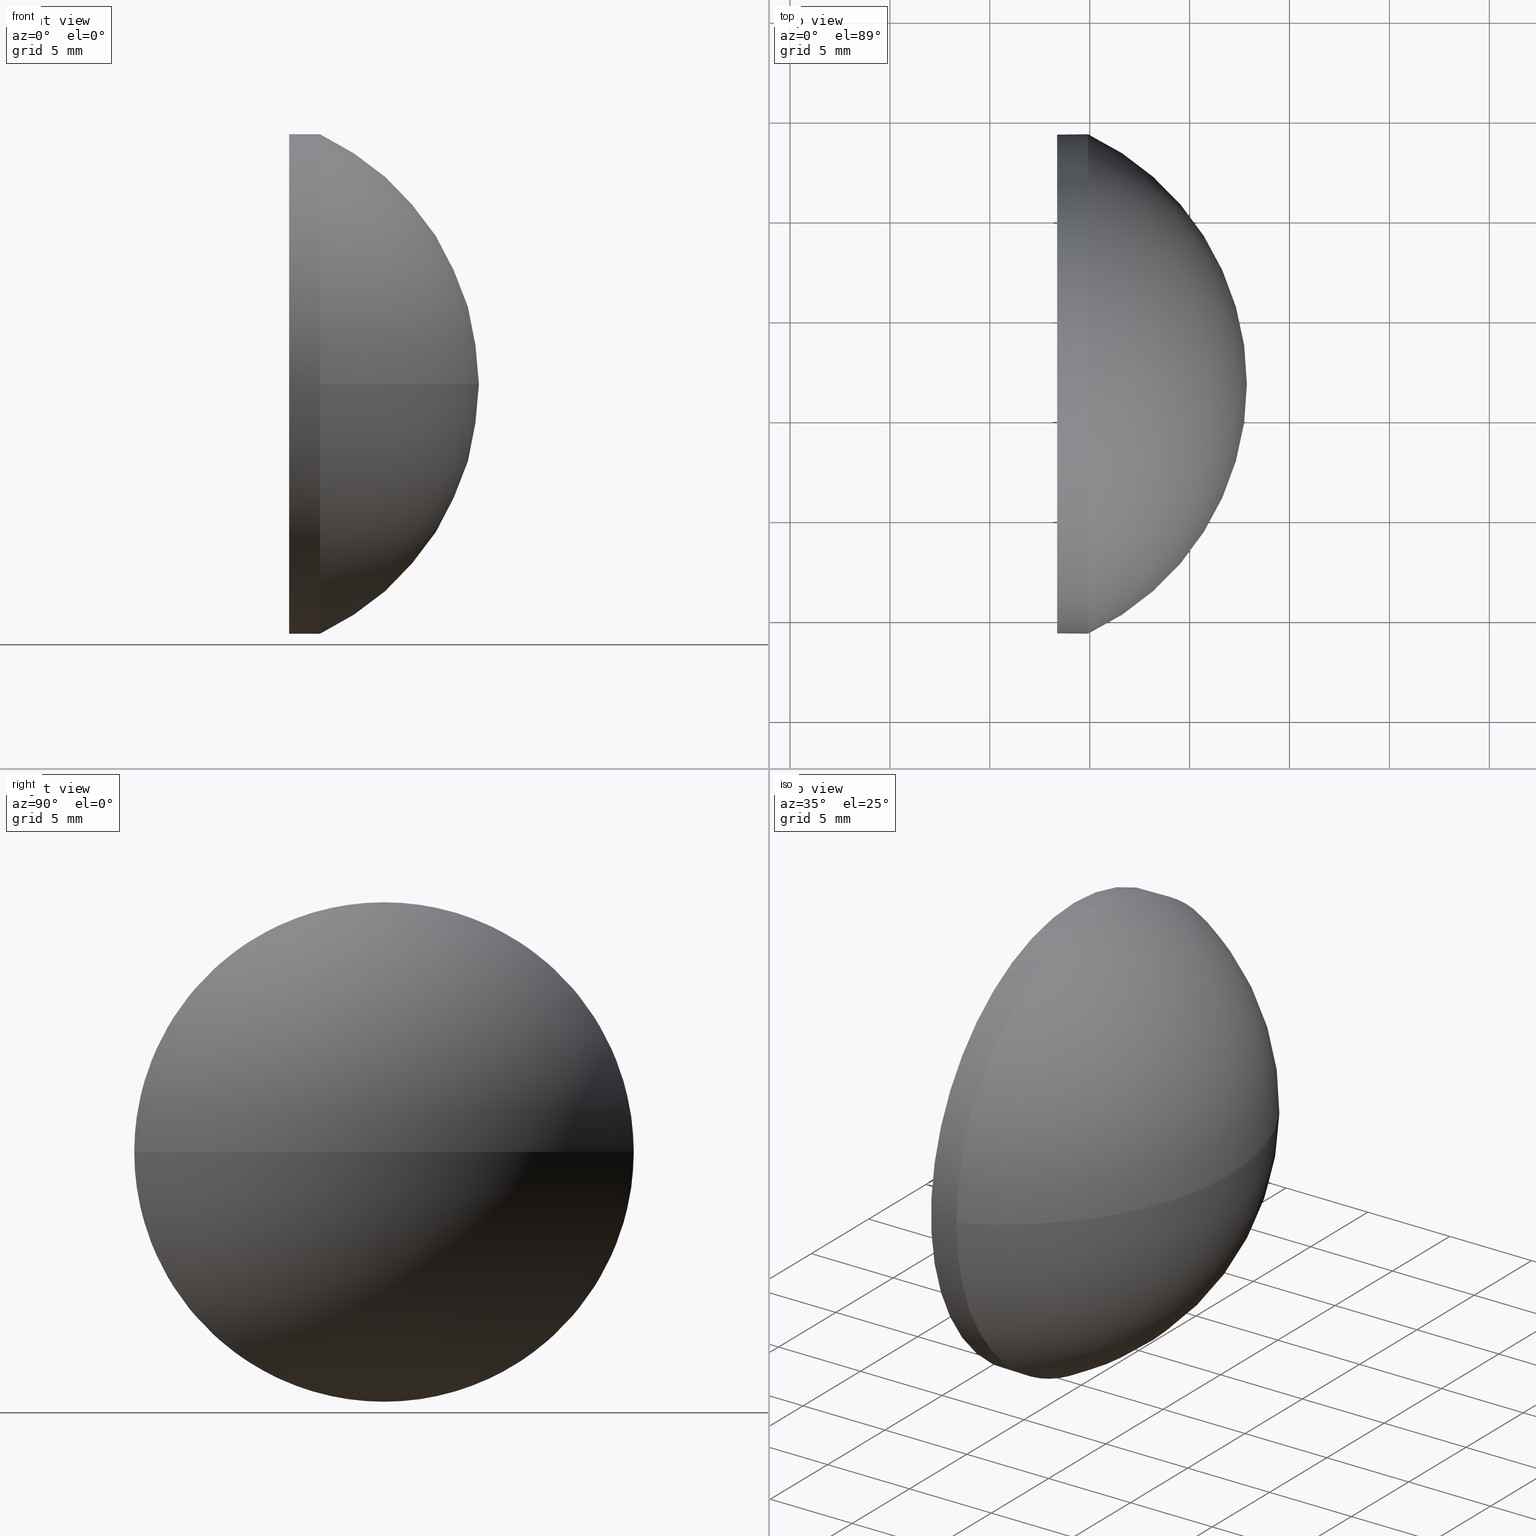
[diagram: canonical four-view strip — front | top / right | iso, engineering-drawing reading convention]
A machine part, canonical four-view strip (front | top / right | iso — engineering-drawing reading convention). The complete STEP part file that produces these views, byte-faithful:
ISO-10303-21;
HEADER;
FILE_DESCRIPTION (( 'STEP AP214' ),
    '1' );
FILE_NAME ('100037.STEP',
    '2019-04-25T08:30:51',
    ( '' ),
    ( '' ),
    'SwSTEP 2.0',
    'SolidWorks 2016',
    '' );
FILE_SCHEMA (( 'AUTOMOTIVE_DESIGN' ));
ENDSEC;

DATA;
#1 = UNCERTAINTY_MEASURE_WITH_UNIT (LENGTH_MEASURE( 1.000000000000000100E-005 ), #69, 'distance_accuracy_value', 'NONE');
#2 = FACE_OUTER_BOUND ( 'NONE', #48, .T. ) ;
#3 = ORIENTED_EDGE ( 'NONE', *, *, #159, .F. ) ;
#4 = ORIENTED_EDGE ( 'NONE', *, *, #67, .T. ) ;
#5 = STYLED_ITEM ( 'NONE', ( #38 ), #182 ) ;
#6 = DIRECTION ( 'NONE',  ( 1.000000000000000000, 0.0000000000000000000, 0.0000000000000000000 ) ) ;
#7 = DIRECTION ( 'NONE',  ( 0.0000000000000000000, 0.0000000000000000000, -1.000000000000000000 ) ) ;
#8 = AXIS2_PLACEMENT_3D ( 'NONE', #114, #42, #82 ) ;
#9 = PRODUCT_DEFINITION_SHAPE ( 'NONE', 'NONE',  #29 ) ;
#10 = AXIS2_PLACEMENT_3D ( 'NONE', #104, #73, #119 ) ;
#11 = ORIENTED_EDGE ( 'NONE', *, *, #67, .F. ) ;
#12 = EDGE_LOOP ( 'NONE', ( #11, #86, #72, #113 ) ) ;
#13 = MECHANICAL_DESIGN_GEOMETRIC_PRESENTATION_REPRESENTATION (  '', ( #5 ), #132 ) ;
#14 = LINE ( 'NONE', #148, #174 ) ;
#15 = DIRECTION ( 'NONE',  ( -1.000000000000000000, -0.0000000000000000000, -0.0000000000000000000 ) ) ;
#16 = FACE_OUTER_BOUND ( 'NONE', #77, .T. ) ;
#17 = CARTESIAN_POINT ( 'NONE',  ( 489.9168740075318200, 159.2156972972453800, 0.0000000000000000000 ) ) ;
#18 = CIRCLE ( 'NONE', #8, 13.80204402515722300 ) ;
#19 = ORIENTED_EDGE ( 'NONE', *, *, #22, .F. ) ;
#20 = ADVANCED_FACE ( 'NONE', ( #106 ), #110, .T. ) ;
#21 = ORIENTED_EDGE ( 'NONE', *, *, #173, .F. ) ;
#22 = EDGE_CURVE ( 'NONE', #49, #121, #58, .T. ) ;
#23 = EDGE_LOOP ( 'NONE', ( #55, #131, #3, #21, #30 ) ) ;
#24 = CARTESIAN_POINT ( 'NONE',  ( 488.3668740075318100, 171.7156972972453600, 0.0000000000000000000 ) ) ;
#25 = CARTESIAN_POINT ( 'NONE',  ( 486.8548427656419300, 171.7156972972453600, 0.0000000000000000000 ) ) ;
#26 = DIRECTION ( 'NONE',  ( 0.0000000000000000000, 0.0000000000000000000, 1.000000000000000000 ) ) ;
#27 = DIRECTION ( 'NONE',  ( -1.000000000000000000, -0.0000000000000000000, -0.0000000000000000000 ) ) ;
#28 = CARTESIAN_POINT ( 'NONE',  ( 489.9168740075318200, 171.7156972972453600, 0.0000000000000000000 ) ) ;
#29 = PRODUCT_DEFINITION ( 'δ֪', '', #45, #95 ) ;
#30 = ORIENTED_EDGE ( 'NONE', *, *, #43, .T. ) ;
#31 = CARTESIAN_POINT ( 'NONE',  ( 489.9168740075318200, 171.7156972972453600, 0.0000000000000000000 ) ) ;
#32 = EDGE_CURVE ( 'NONE', #167, #175, #44, .T. ) ;
#33 = ORIENTED_EDGE ( 'NONE', *, *, #173, .T. ) ;
#34 = MANIFOLD_SOLID_BREP ( '��ת1', #76 ) ;
#35 = ADVANCED_FACE ( 'NONE', ( #16 ), #172, .T. ) ;
#36 = ORIENTED_EDGE ( 'NONE', *, *, #32, .T. ) ;
#37 = CARTESIAN_POINT ( 'NONE',  ( 488.3668740075318100, 171.7156972972453600, 0.0000000000000000000 ) ) ;
#38 = PRESENTATION_STYLE_ASSIGNMENT (( #123 ) ) ;
#39 = FILL_AREA_STYLE_COLOUR ( '', #61 ) ;
#40 = CARTESIAN_POINT ( 'NONE',  ( 489.9168740075318200, 171.7156972972453600, 0.0000000000000000000 ) ) ;
#41 = ORIENTED_EDGE ( 'NONE', *, *, #32, .F. ) ;
#42 = DIRECTION ( 'NONE',  ( 0.0000000000000000000, 0.0000000000000000000, -1.000000000000000000 ) ) ;
#43 = EDGE_CURVE ( 'NONE', #100, #128, #165, .T. ) ;
#44 = CIRCLE ( 'NONE', #88, 12.49999999999998400 ) ;
#45 = PRODUCT_DEFINITION_FORMATION_WITH_SPECIFIED_SOURCE ( '�κ�', '', #74, .NOT_KNOWN. ) ;
#46 = SURFACE_STYLE_FILL_AREA ( #166 ) ;
#47 = DIRECTION ( 'NONE',  ( 0.0000000000000000000, -1.224646799147353200E-016, 1.000000000000000000 ) ) ;
#48 = EDGE_LOOP ( 'NONE', ( #144, #36, #158, #33, #19 ) ) ;
#49 = VERTEX_POINT ( 'NONE', #184 ) ;
#50 = PLANE ( 'NONE',  #52 ) ;
#51 = CARTESIAN_POINT ( 'NONE',  ( 489.9168740075318200, 171.7156972972453600, -12.49999999999998400 ) ) ;
#52 = AXIS2_PLACEMENT_3D ( 'NONE', #139, #163, #7 ) ;
#53 = CYLINDRICAL_SURFACE ( 'NONE', #10, 12.49999999999998400 ) ;
#54 = DIRECTION ( 'NONE',  ( 0.0000000000000000000, 0.0000000000000000000, 1.000000000000000000 ) ) ;
#55 = ORIENTED_EDGE ( 'NONE', *, *, #59, .T. ) ;
#56 = EDGE_LOOP ( 'NONE', ( #87, #120 ) ) ;
#57 = CARTESIAN_POINT ( 'NONE',  ( 484.0648299823745900, 171.7156972972453800, 0.0000000000000000000 ) ) ;
#58 = CIRCLE ( 'NONE', #179, 12.49999999999998400 ) ;
#59 = EDGE_CURVE ( 'NONE', #128, #167, #93, .T. ) ;
#60 = AXIS2_PLACEMENT_3D ( 'NONE', #31, #15, #186 ) ;
#61 = COLOUR_RGB ( '',1.000000000000000000, 1.000000000000000000, 1.000000000000000000 ) ;
#62 = AXIS2_PLACEMENT_3D ( 'NONE', #178, #135, #6 ) ;
#63 = ADVANCED_FACE ( 'NONE', ( #80 ), #105, .T. ) ;
#64 = UNCERTAINTY_MEASURE_WITH_UNIT (LENGTH_MEASURE( 1.000000000000000100E-005 ), #125, 'distance_accuracy_value', 'NONE');
#65 = DIRECTION ( 'NONE',  ( -1.000000000000000000, -0.0000000000000000000, -0.0000000000000000000 ) ) ;
#66 = DIRECTION ( 'NONE',  ( 0.0000000000000000000, 0.0000000000000000000, 1.000000000000000000 ) ) ;
#67 = EDGE_CURVE ( 'NONE', #151, #175, #18, .T. ) ;
#68 =( NAMED_UNIT ( * ) SI_UNIT ( $, .STERADIAN. ) SOLID_ANGLE_UNIT ( ) );
#69 =( LENGTH_UNIT ( ) NAMED_UNIT ( * ) SI_UNIT ( .MILLI., .METRE. ) );
#70 = SURFACE_SIDE_STYLE ('',( #46 ) ) ;
#71 = DIRECTION ( 'NONE',  ( -1.000000000000000000, -0.0000000000000000000, -0.0000000000000000000 ) ) ;
#72 = ORIENTED_EDGE ( 'NONE', *, *, #43, .F. ) ;
#73 = DIRECTION ( 'NONE',  ( -1.000000000000000000, -0.0000000000000000000, -0.0000000000000000000 ) ) ;
#74 = PRODUCT ( '100037', '100037', '', ( #99 ) ) ;
#75 = CARTESIAN_POINT ( 'NONE',  ( 489.9168740075318200, 184.2156972972453600, 1.530808498934187400E-015 ) ) ;
#76 = CLOSED_SHELL ( 'NONE', ( #20, #63, #35, #91, #160 ) ) ;
#77 = EDGE_LOOP ( 'NONE', ( #117, #4, #41, #137 ) ) ;
#78 = DIRECTION ( 'NONE',  ( -1.000000000000000000, -0.0000000000000000000, -0.0000000000000000000 ) ) ;
#79 = AXIS2_PLACEMENT_3D ( 'NONE', #25, #122, #108 ) ;
#80 = FACE_OUTER_BOUND ( 'NONE', #12, .T. ) ;
#81 = CARTESIAN_POINT ( 'NONE',  ( 489.9168740075318200, 171.7156972972453600, 0.0000000000000000000 ) ) ;
#82 = DIRECTION ( 'NONE',  ( -1.000000000000000000, 0.0000000000000000000, 0.0000000000000000000 ) ) ;
#83 = SHAPE_DEFINITION_REPRESENTATION ( #9, #182 ) ;
#84 = APPLICATION_PROTOCOL_DEFINITION ( 'draft international standard', 'automotive_design', 1998, #171 ) ;
#85 = EDGE_CURVE ( 'NONE', #151, #128, #90, .T. ) ;
#86 = ORIENTED_EDGE ( 'NONE', *, *, #85, .T. ) ;
#87 = ORIENTED_EDGE ( 'NONE', *, *, #159, .T. ) ;
#88 = AXIS2_PLACEMENT_3D ( 'NONE', #40, #27, #141 ) ;
#89 = DIRECTION ( 'NONE',  ( -1.000000000000000000, -0.0000000000000000000, -0.0000000000000000000 ) ) ;
#90 = CIRCLE ( 'NONE', #145, 13.80204402515719600 ) ;
#91 = ADVANCED_FACE ( 'NONE', ( #2 ), #53, .T. ) ;
#92 = EDGE_CURVE ( 'NONE', #167, #49, #130, .T. ) ;
#93 = CIRCLE ( 'NONE', #94, 12.49999999999998400 ) ;
#94 = AXIS2_PLACEMENT_3D ( 'NONE', #28, #143, #170 ) ;
#95 = PRODUCT_DEFINITION_CONTEXT ( 'detailed design', #176, 'design' ) ;
#96 = DIRECTION ( 'NONE',  ( 0.0000000000000000000, -1.000000000000000000, 0.0000000000000000000 ) ) ;
#97 = AXIS2_PLACEMENT_3D ( 'NONE', #81, #71, #26 ) ;
#98 = CIRCLE ( 'NONE', #60, 12.49999999999998400 ) ;
#99 = PRODUCT_CONTEXT ( 'NONE', #171, 'mechanical' ) ;
#100 = VERTEX_POINT ( 'NONE', #103 ) ;
#101 = PRODUCT_RELATED_PRODUCT_CATEGORY ( 'part', '', ( #74 ) ) ;
#102 = MECHANICAL_DESIGN_GEOMETRIC_PRESENTATION_REPRESENTATION (  '', ( #185 ), #124 ) ;
#103 = CARTESIAN_POINT ( 'NONE',  ( 489.9168740075318200, 171.7156972972453600, 12.49999999999998400 ) ) ;
#104 = CARTESIAN_POINT ( 'NONE',  ( 486.8548427656419300, 171.7156972972453600, 0.0000000000000000000 ) ) ;
#105 = SPHERICAL_SURFACE ( 'NONE', #115, 13.80204402515720300 ) ;
#106 = FACE_OUTER_BOUND ( 'NONE', #23, .T. ) ;
#107 = PRESENTATION_LAYER_ASSIGNMENT (  '', '', ( #185 ) ) ;
#108 = DIRECTION ( 'NONE',  ( 0.0000000000000000000, 0.0000000000000000000, 1.000000000000000000 ) ) ;
#109 = AXIS2_PLACEMENT_3D ( 'NONE', #57, #54, #96 ) ;
#110 = CYLINDRICAL_SURFACE ( 'NONE', #79, 12.49999999999998400 ) ;
#111 = DIRECTION ( 'NONE',  ( 0.0000000000000000000, 0.0000000000000000000, 1.000000000000000000 ) ) ;
#112 = DIRECTION ( 'NONE',  ( 0.0000000000000000000, -1.000000000000000000, 0.0000000000000000000 ) ) ;
#113 = ORIENTED_EDGE ( 'NONE', *, *, #150, .F. ) ;
#114 = CARTESIAN_POINT ( 'NONE',  ( 484.0648299823745900, 171.7156972972453800, 0.0000000000000000000 ) ) ;
#115 = AXIS2_PLACEMENT_3D ( 'NONE', #157, #126, #112 ) ;
#116 = FACE_OUTER_BOUND ( 'NONE', #56, .T. ) ;
#117 = ORIENTED_EDGE ( 'NONE', *, *, #85, .F. ) ;
#118 = CARTESIAN_POINT ( 'NONE',  ( 484.0648299823745900, 171.7156972972453800, 0.0000000000000000000 ) ) ;
#119 = DIRECTION ( 'NONE',  ( 0.0000000000000000000, 0.0000000000000000000, 1.000000000000000000 ) ) ;
#120 = ORIENTED_EDGE ( 'NONE', *, *, #22, .T. ) ;
#121 = VERTEX_POINT ( 'NONE', #162 ) ;
#122 = DIRECTION ( 'NONE',  ( -1.000000000000000000, -0.0000000000000000000, -0.0000000000000000000 ) ) ;
#123 = SURFACE_STYLE_USAGE ( .BOTH. , #140 ) ;
#124 =( GEOMETRIC_REPRESENTATION_CONTEXT ( 3 ) GLOBAL_UNCERTAINTY_ASSIGNED_CONTEXT ( ( #64 ) ) GLOBAL_UNIT_ASSIGNED_CONTEXT ( ( #125, #127, #68 ) ) REPRESENTATION_CONTEXT ( 'NONE', 'WORKASPACE' ) );
#125 =( LENGTH_UNIT ( ) NAMED_UNIT ( * ) SI_UNIT ( .MILLI., .METRE. ) );
#126 = DIRECTION ( 'NONE',  ( 0.0000000000000000000, 0.0000000000000000000, 1.000000000000000000 ) ) ;
#127 =( NAMED_UNIT ( * ) PLANE_ANGLE_UNIT ( ) SI_UNIT ( $, .RADIAN. ) );
#128 = VERTEX_POINT ( 'NONE', #75 ) ;
#129 = CARTESIAN_POINT ( 'NONE',  ( 497.8668740075318100, 171.7156972972453800, 0.0000000000000000000 ) ) ;
#130 = LINE ( 'NONE', #149, #183 ) ;
#131 = ORIENTED_EDGE ( 'NONE', *, *, #92, .T. ) ;
#132 =( GEOMETRIC_REPRESENTATION_CONTEXT ( 3 ) GLOBAL_UNCERTAINTY_ASSIGNED_CONTEXT ( ( #154 ) ) GLOBAL_UNIT_ASSIGNED_CONTEXT ( ( #153, #138, #181 ) ) REPRESENTATION_CONTEXT ( 'NONE', 'WORKASPACE' ) );
#133 = APPLICATION_PROTOCOL_DEFINITION ( 'draft international standard', 'automotive_design', 1998, #176 ) ;
#134 = PRESENTATION_STYLE_ASSIGNMENT (( #155 ) ) ;
#135 = DIRECTION ( 'NONE',  ( 0.0000000000000000000, 0.0000000000000000000, 1.000000000000000000 ) ) ;
#136 = SURFACE_STYLE_FILL_AREA ( #156 ) ;
#137 = ORIENTED_EDGE ( 'NONE', *, *, #59, .F. ) ;
#138 =( NAMED_UNIT ( * ) PLANE_ANGLE_UNIT ( ) SI_UNIT ( $, .RADIAN. ) );
#139 = CARTESIAN_POINT ( 'NONE',  ( 488.3668740075318100, 171.7156972972453600, 0.0000000000000000000 ) ) ;
#140 = SURFACE_SIDE_STYLE ('',( #136 ) ) ;
#141 = DIRECTION ( 'NONE',  ( 0.0000000000000000000, 0.0000000000000000000, 1.000000000000000000 ) ) ;
#142 =( NAMED_UNIT ( * ) SI_UNIT ( $, .STERADIAN. ) SOLID_ANGLE_UNIT ( ) );
#143 = DIRECTION ( 'NONE',  ( -1.000000000000000000, -0.0000000000000000000, -0.0000000000000000000 ) ) ;
#144 = ORIENTED_EDGE ( 'NONE', *, *, #92, .F. ) ;
#145 = AXIS2_PLACEMENT_3D ( 'NONE', #118, #47, #177 ) ;
#146 = CIRCLE ( 'NONE', #147, 12.49999999999998400 ) ;
#147 = AXIS2_PLACEMENT_3D ( 'NONE', #24, #78, #66 ) ;
#148 = CARTESIAN_POINT ( 'NONE',  ( 486.8548427656419300, 171.7156972972453600, 12.49999999999998400 ) ) ;
#149 = CARTESIAN_POINT ( 'NONE',  ( 486.8548427656419300, 171.7156972972453600, -12.49999999999998400 ) ) ;
#150 = EDGE_CURVE ( 'NONE', #175, #100, #98, .T. ) ;
#151 = VERTEX_POINT ( 'NONE', #129 ) ;
#152 = PRESENTATION_LAYER_ASSIGNMENT (  '', '', ( #5 ) ) ;
#153 =( LENGTH_UNIT ( ) NAMED_UNIT ( * ) SI_UNIT ( .MILLI., .METRE. ) );
#154 = UNCERTAINTY_MEASURE_WITH_UNIT (LENGTH_MEASURE( 1.000000000000000100E-005 ), #153, 'distance_accuracy_value', 'NONE');
#155 = SURFACE_STYLE_USAGE ( .BOTH. , #70 ) ;
#156 = FILL_AREA_STYLE ('',( #39 ) ) ;
#157 = CARTESIAN_POINT ( 'NONE',  ( 484.0648299823745900, 171.7156972972453800, 0.0000000000000000000 ) ) ;
#158 = ORIENTED_EDGE ( 'NONE', *, *, #150, .T. ) ;
#159 = EDGE_CURVE ( 'NONE', #121, #49, #146, .T. ) ;
#160 = ADVANCED_FACE ( 'NONE', ( #116 ), #50, .F. ) ;
#161 = COLOUR_RGB ( '',1.000000000000000000, 1.000000000000000000, 1.000000000000000000 ) ;
#162 = CARTESIAN_POINT ( 'NONE',  ( 488.3668740075318100, 171.7156972972453600, 12.49999999999998400 ) ) ;
#163 = DIRECTION ( 'NONE',  ( 1.000000000000000000, 0.0000000000000000000, 0.0000000000000000000 ) ) ;
#164 = FILL_AREA_STYLE_COLOUR ( '', #161 ) ;
#165 = CIRCLE ( 'NONE', #97, 12.49999999999998400 ) ;
#166 = FILL_AREA_STYLE ('',( #164 ) ) ;
#167 = VERTEX_POINT ( 'NONE', #51 ) ;
#168 =( NAMED_UNIT ( * ) PLANE_ANGLE_UNIT ( ) SI_UNIT ( $, .RADIAN. ) );
#169 = DIRECTION ( 'NONE',  ( -1.000000000000000000, -0.0000000000000000000, -0.0000000000000000000 ) ) ;
#170 = DIRECTION ( 'NONE',  ( 0.0000000000000000000, 0.0000000000000000000, 1.000000000000000000 ) ) ;
#171 = APPLICATION_CONTEXT ( 'automotive_design' ) ;
#172 = SPHERICAL_SURFACE ( 'NONE', #109, 13.80204402515720300 ) ;
#173 = EDGE_CURVE ( 'NONE', #100, #121, #14, .T. ) ;
#174 = VECTOR ( 'NONE', #89, 1000.000000000000000 ) ;
#175 = VERTEX_POINT ( 'NONE', #17 ) ;
#176 = APPLICATION_CONTEXT ( 'automotive_design' ) ;
#177 = DIRECTION ( 'NONE',  ( 0.0000000000000000000, -1.000000000000000000, -1.224646799147353700E-016 ) ) ;
#178 = CARTESIAN_POINT ( 'NONE',  ( 0.0000000000000000000, 0.0000000000000000000, 0.0000000000000000000 ) ) ;
#179 = AXIS2_PLACEMENT_3D ( 'NONE', #37, #169, #111 ) ;
#180 =( GEOMETRIC_REPRESENTATION_CONTEXT ( 3 ) GLOBAL_UNCERTAINTY_ASSIGNED_CONTEXT ( ( #1 ) ) GLOBAL_UNIT_ASSIGNED_CONTEXT ( ( #69, #168, #142 ) ) REPRESENTATION_CONTEXT ( 'NONE', 'WORKASPACE' ) );
#181 =( NAMED_UNIT ( * ) SI_UNIT ( $, .STERADIAN. ) SOLID_ANGLE_UNIT ( ) );
#182 = ADVANCED_BREP_SHAPE_REPRESENTATION ( '100037', ( #34, #62 ), #180 ) ;
#183 = VECTOR ( 'NONE', #65, 1000.000000000000000 ) ;
#184 = CARTESIAN_POINT ( 'NONE',  ( 488.3668740075318100, 171.7156972972453600, -12.49999999999998400 ) ) ;
#185 = STYLED_ITEM ( 'NONE', ( #134 ), #34 ) ;
#186 = DIRECTION ( 'NONE',  ( 0.0000000000000000000, 0.0000000000000000000, 1.000000000000000000 ) ) ;
ENDSEC;
END-ISO-10303-21;
